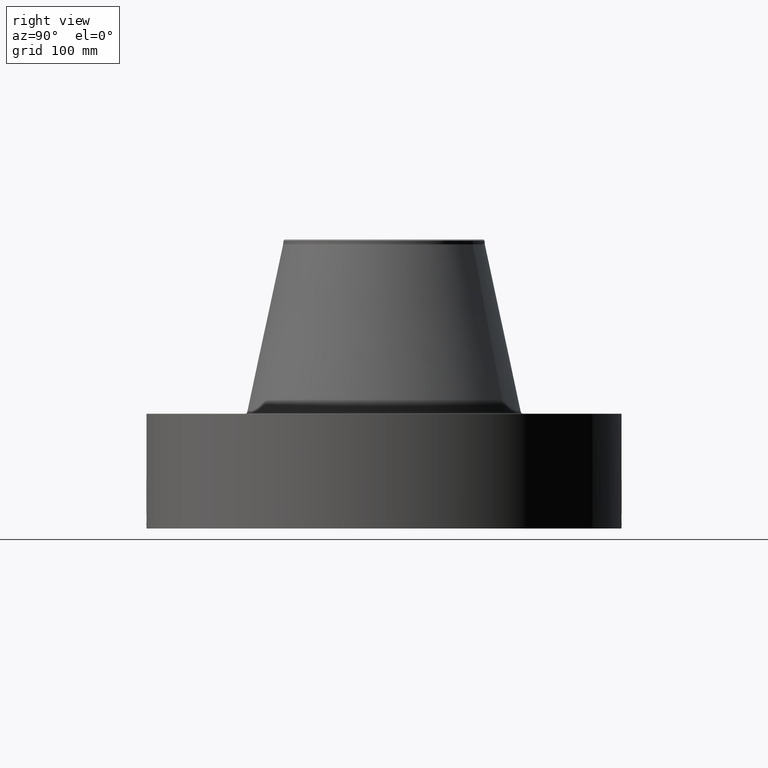
[diagram: clean part render]
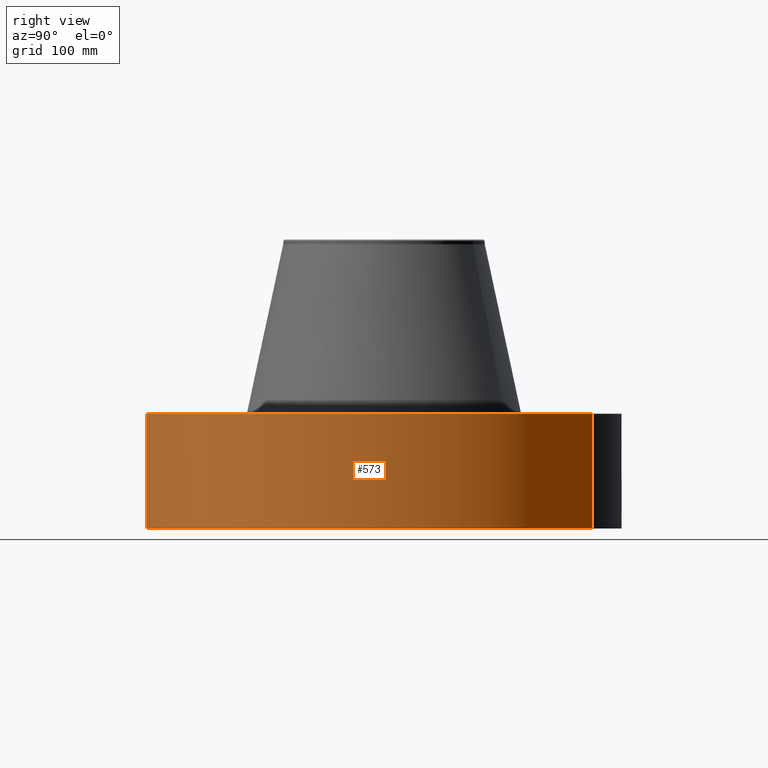
[diagram: same view with one face highlighted and labeled with its STEP entity id]
A machine part, right view. The second image highlights one B-rep face of the part: STEP entity #573.
In plain terms, the highlighted cylindrical surface (partial cylindrical patch) has radius 381 mm, axis along (0, 0, -1).
Its self-contained STEP definition (entity closure, byte-faithful):
#38=AXIS2_PLACEMENT_3D('Cylinder Axis2P3D',#35,#36,#37) ;
#169=AXIS2_PLACEMENT_3D('Circle Axis2P3D',#167,#168,$) ;
#477=AXIS2_PLACEMENT_3D('Circle Axis2P3D',#475,#476,$) ;
#35=CARTESIAN_POINT('Axis2P3D Location',(0.,0.,9.37500000004)) ;
#44=CARTESIAN_POINT('Vertex',(-7.19138307909,-13.1637384284,0.250000000001)) ;
#46=CARTESIAN_POINT('Vertex',(7.19138307909,13.1637384284,0.250000000001)) ;
#49=CARTESIAN_POINT('Line Origine',(-7.19138307909,-13.1637384284,3.87500000002)) ;
#53=CARTESIAN_POINT('Vertex',(-7.19138307909,-13.1637384284,7.50000000003)) ;
#60=CARTESIAN_POINT('Vertex',(7.19138307909,13.1637384284,7.50000000003)) ;
#63=CARTESIAN_POINT('Line Origine',(7.19138307909,13.1637384284,3.87500000002)) ;
#167=CARTESIAN_POINT('Axis2P3D Location',(0.,0.,0.250000000001)) ;
#475=CARTESIAN_POINT('Axis2P3D Location',(0.,0.,7.50000000003)) ;
#487=CARTESIAN_POINT('Control Point',(0.000716064307651,-14.999999983,1.29411846125)) ;
#488=CARTESIAN_POINT('Control Point',(0.0189897411516,-14.9999991106,1.29408155351)) ;
#489=CARTESIAN_POINT('Control Point',(0.0372602213406,-14.9999645814,1.29262621732)) ;
#490=CARTESIAN_POINT('Control Point',(0.0553090794404,-14.9998980299,1.28977002987)) ;
#491=CARTESIAN_POINT('Vertex',(0.000715705908025,-14.999999983,1.29411851053)) ;
#493=CARTESIAN_POINT('Vertex',(0.0553002367626,-14.9998983154,1.2897714474)) ;
#497=CARTESIAN_POINT('Control Point',(0.0553001411659,-14.9998980629,1.28977089872)) ;
#498=CARTESIAN_POINT('Control Point',(0.0957344927366,-14.9997489935,1.28534453896)) ;
#499=CARTESIAN_POINT('Control Point',(0.135528579791,-14.9994325123,1.27356327555)) ;
#500=CARTESIAN_POINT('Control Point',(0.172182465136,-14.9990117408,1.2552085562)) ;
#501=CARTESIAN_POINT('Vertex',(0.172182465136,-14.9990117408,1.2552085562)) ;
#505=CARTESIAN_POINT('Control Point',(0.0309976706633,-14.9999679715,0.531187970039)) ;
#506=CARTESIAN_POINT('Control Point',(0.0961489402789,-14.9998333354,0.539434259247)) ;
#507=CARTESIAN_POINT('Control Point',(0.159243969538,-14.9993492222,0.561293233357)) ;
#508=CARTESIAN_POINT('Control Point',(0.216328927673,-14.9985661034,0.596101070228)) ;
#509=CARTESIAN_POINT('Control Point',(0.288720679333,-14.9972848457,0.664191589954)) ;
#510=CARTESIAN_POINT('Control Point',(0.336308947607,-14.9962404587,0.748658335677)) ;
#511=CARTESIAN_POINT('Control Point',(0.349350193849,-14.9959366349,0.778720702194)) ;
#512=CARTESIAN_POINT('Control Point',(0.371562235348,-14.9954029913,0.848964599695)) ;
#513=CARTESIAN_POINT('Control Point',(0.377049296204,-14.9952589646,0.922138400903)) ;
#514=CARTESIAN_POINT('Control Point',(0.374784802944,-14.9953174775,0.96294972191)) ;
#515=CARTESIAN_POINT('Control Point',(0.356379300921,-14.9957848471,1.06070640098)) ;
#516=CARTESIAN_POINT('Control Point',(0.308045897358,-14.9968820179,1.14791636848)) ;
#517=CARTESIAN_POINT('Control Point',(0.269755602893,-14.9976721425,1.19320631167)) ;
#518=CARTESIAN_POINT('Control Point',(0.223499773684,-14.9984226393,1.22951100886)) ;
#519=CARTESIAN_POINT('Control Point',(0.172182465136,-14.9990117408,1.2552085562)) ;
#520=CARTESIAN_POINT('Vertex',(0.0309976706633,-14.9999679715,0.531187970039)) ;
#524=CARTESIAN_POINT('Control Point',(0.0309976706633,-14.9999679715,0.531187970039)) ;
#525=CARTESIAN_POINT('Control Point',(0.0206602207533,-14.999989334,0.530874379127)) ;
#526=CARTESIAN_POINT('Control Point',(0.0103152646898,-15.0000000019,0.530936788072)) ;
#527=CARTESIAN_POINT('Control Point',(-2.72878355453E-006,-15.0000000001,0.531374667806)) ;
#528=CARTESIAN_POINT('Vertex',(-2.72878354464E-006,-15.0000000001,0.531374667806)) ;
#532=CARTESIAN_POINT('Control Point',(-0.192639710053,-14.9987629471,0.587386430572)) ;
#533=CARTESIAN_POINT('Control Point',(-0.14901106782,-14.9993233006,0.56202458635)) ;
#534=CARTESIAN_POINT('Control Point',(-0.101117444429,-14.9997699386,0.543774317478)) ;
#535=CARTESIAN_POINT('Control Point',(-0.0508060220936,-14.9999999908,0.533530681304)) ;
#536=CARTESIAN_POINT('Control Point',(-2.72878354123E-006,-15.0000000001,0.531374667806)) ;
#537=CARTESIAN_POINT('Vertex',(-0.192639710053,-14.9987629471,0.587386430572)) ;
#541=CARTESIAN_POINT('Control Point',(-0.192639710053,-14.9987629471,0.587386430572)) ;
#542=CARTESIAN_POINT('Control Point',(-0.249478798179,-14.9980329226,0.620427662229)) ;
#543=CARTESIAN_POINT('Control Point',(-0.299551865684,-14.9971205087,0.664783899359)) ;
#544=CARTESIAN_POINT('Control Point',(-0.339714654671,-14.996193376,0.718902219195)) ;
#545=CARTESIAN_POINT('Control Point',(-0.383950103394,-14.9950952292,0.817087404752)) ;
#546=CARTESIAN_POINT('Control Point',(-0.392523536782,-14.9948619351,0.922373688579)) ;
#547=CARTESIAN_POINT('Control Point',(-0.390405606485,-14.9949189032,0.96253233829)) ;
#548=CARTESIAN_POINT('Control Point',(-0.376248045191,-14.9952931222,1.03743070643)) ;
#549=CARTESIAN_POINT('Control Point',(-0.344129560364,-14.9960649016,1.1058569705)) ;
#550=CARTESIAN_POINT('Control Point',(-0.32505929022,-14.9965000961,1.13627844629)) ;
#551=CARTESIAN_POINT('Control Point',(-0.263326095607,-14.9977882082,1.21268288027)) ;
#552=CARTESIAN_POINT('Control Point',(-0.180208543608,-14.9990691929,1.26564779474)) ;
#553=CARTESIAN_POINT('Control Point',(-0.12143944126,-14.9996975534,1.28768001624)) ;
#554=CARTESIAN_POINT('Control Point',(-0.0602391587572,-15.0000001039,1.2971076942)) ;
#555=CARTESIAN_POINT('Control Point',(2.58579355308E-005,-15.,1.2941529843)) ;
#556=CARTESIAN_POINT('Vertex',(2.58579355462E-005,-15.,1.2941529843)) ;
#560=CARTESIAN_POINT('Control Point',(0.000715705898412,-14.999999983,1.29411851051)) ;
#561=CARTESIAN_POINT('Control Point',(0.000370806451843,-14.9999999994,1.29413607196)) ;
#562=CARTESIAN_POINT('Control Point',(2.58579406098E-005,-15.,1.2941529843)) ;
#36=DIRECTION('Axis2P3D Direction',(0.,0.,-0.0393700787402)) ;
#37=DIRECTION('Axis2P3D XDirection',(0.0188750212049,0.0345504945626,0.)) ;
#50=DIRECTION('Vector Direction',(0.,0.,-0.0393700787402)) ;
#64=DIRECTION('Vector Direction',(0.,0.,-0.0393700787402)) ;
#168=DIRECTION('Axis2P3D Direction',(0.,0.,-0.0393700787402)) ;
#476=DIRECTION('Axis2P3D Direction',(0.,0.,-0.0393700787402)) ;
#51=VECTOR('Line Direction',#50,0.0393700787402) ;
#65=VECTOR('Line Direction',#64,0.0393700787402) ;
#481=ORIENTED_EDGE('',*,*,#171,.F.) ;
#482=ORIENTED_EDGE('',*,*,#67,.T.) ;
#483=ORIENTED_EDGE('',*,*,#479,.T.) ;
#484=ORIENTED_EDGE('',*,*,#55,.F.) ;
#565=ORIENTED_EDGE('',*,*,#495,.T.) ;
#566=ORIENTED_EDGE('',*,*,#503,.T.) ;
#567=ORIENTED_EDGE('',*,*,#522,.F.) ;
#568=ORIENTED_EDGE('',*,*,#530,.T.) ;
#569=ORIENTED_EDGE('',*,*,#539,.F.) ;
#570=ORIENTED_EDGE('',*,*,#558,.T.) ;
#571=ORIENTED_EDGE('',*,*,#563,.F.) ;
#572=FACE_BOUND('',#564,.T.) ;
#573=ADVANCED_FACE('PartBody',(#485,#572),#39,.T.) ;
#486=B_SPLINE_CURVE_WITH_KNOTS('',3,(#487,#488,#489,#490),.UNSPECIFIED.,.F.,.U.,(4,4),(34.6165854509,36.643876497),.UNSPECIFIED.) ;
#496=B_SPLINE_CURVE_WITH_KNOTS('',3,(#497,#498,#499,#500),.UNSPECIFIED.,.F.,.U.,(4,4),(0.,4.57050647049),.UNSPECIFIED.) ;
#504=B_SPLINE_CURVE_WITH_KNOTS('',5,(#505,#506,#507,#508,#509,#510,#511,#512,#513,#514,#515,#516,#517,#518,#519),.UNSPECIFIED.,.F.,.U.,(6,3,3,3,6),(0.,11.4128862976,17.2543859847,24.6135943633,35.2784982399),.UNSPECIFIED.) ;
#523=B_SPLINE_CURVE_WITH_KNOTS('',3,(#524,#525,#526,#527),.UNSPECIFIED.,.F.,.U.,(4,4),(0.,1.07835099617),.UNSPECIFIED.) ;
#531=B_SPLINE_CURVE_WITH_KNOTS('',4,(#532,#533,#534,#535,#536),.UNSPECIFIED.,.F.,.U.,(5,5),(0.,7.07938445444),.UNSPECIFIED.) ;
#540=B_SPLINE_CURVE_WITH_KNOTS('',5,(#541,#542,#543,#544,#545,#546,#547,#548,#549,#550,#551,#552,#553,#554,#555),.UNSPECIFIED.,.F.,.U.,(6,3,3,3,6),(0.,11.5287152705,18.6054333316,25.0259103535,36.2906927947),.UNSPECIFIED.) ;
#559=B_SPLINE_CURVE_WITH_KNOTS('',2,(#560,#561,#562),.UNSPECIFIED.,.F.,.U.,(3,3),(1.02233438764,1.04812560325),.UNSPECIFIED.) ;
#170=CIRCLE('generated circle',#169,15.0000000001) ;
#478=CIRCLE('generated circle',#477,15.0000000001) ;
#39=CYLINDRICAL_SURFACE('generated cylinder',#38,15.0000000001) ;
#55=EDGE_CURVE('',#45,#54,#52,.F.) ;
#67=EDGE_CURVE('',#47,#61,#66,.F.) ;
#171=EDGE_CURVE('',#47,#45,#170,.T.) ;
#479=EDGE_CURVE('',#61,#54,#478,.T.) ;
#495=EDGE_CURVE('',#492,#494,#486,.T.) ;
#503=EDGE_CURVE('',#494,#502,#496,.T.) ;
#522=EDGE_CURVE('',#521,#502,#504,.T.) ;
#530=EDGE_CURVE('',#521,#529,#523,.T.) ;
#539=EDGE_CURVE('',#538,#529,#531,.T.) ;
#558=EDGE_CURVE('',#538,#557,#540,.T.) ;
#563=EDGE_CURVE('',#492,#557,#559,.T.) ;
#480=EDGE_LOOP('',(#481,#482,#483,#484)) ;
#564=EDGE_LOOP('',(#565,#566,#567,#568,#569,#570,#571)) ;
#485=FACE_OUTER_BOUND('',#480,.T.) ;
#52=LINE('Line',#49,#51) ;
#66=LINE('Line',#63,#65) ;
#45=VERTEX_POINT('',#44) ;
#47=VERTEX_POINT('',#46) ;
#54=VERTEX_POINT('',#53) ;
#61=VERTEX_POINT('',#60) ;
#492=VERTEX_POINT('',#491) ;
#494=VERTEX_POINT('',#493) ;
#502=VERTEX_POINT('',#501) ;
#521=VERTEX_POINT('',#520) ;
#529=VERTEX_POINT('',#528) ;
#538=VERTEX_POINT('',#537) ;
#557=VERTEX_POINT('',#556) ;